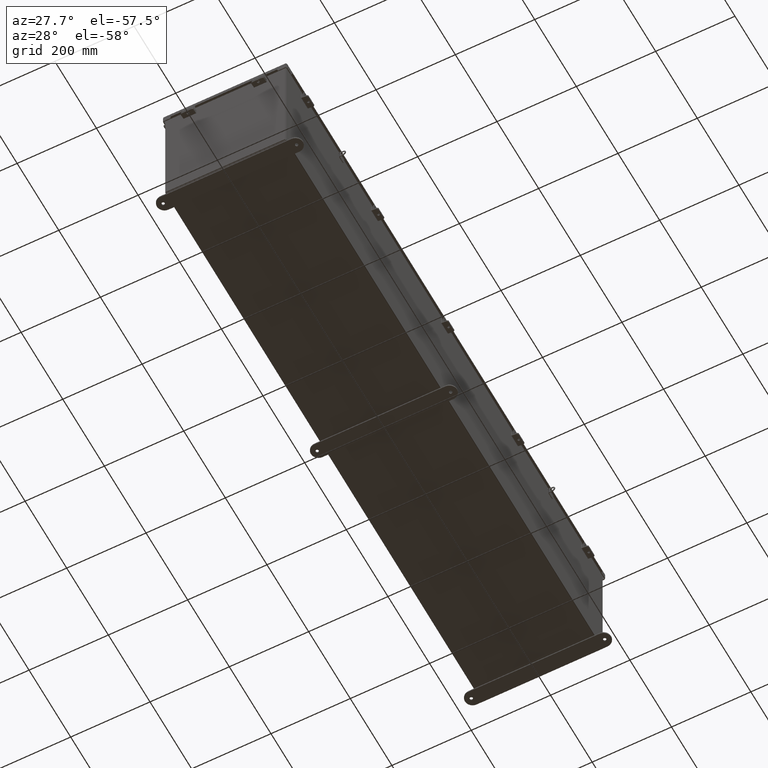
[diagram: clean part render]
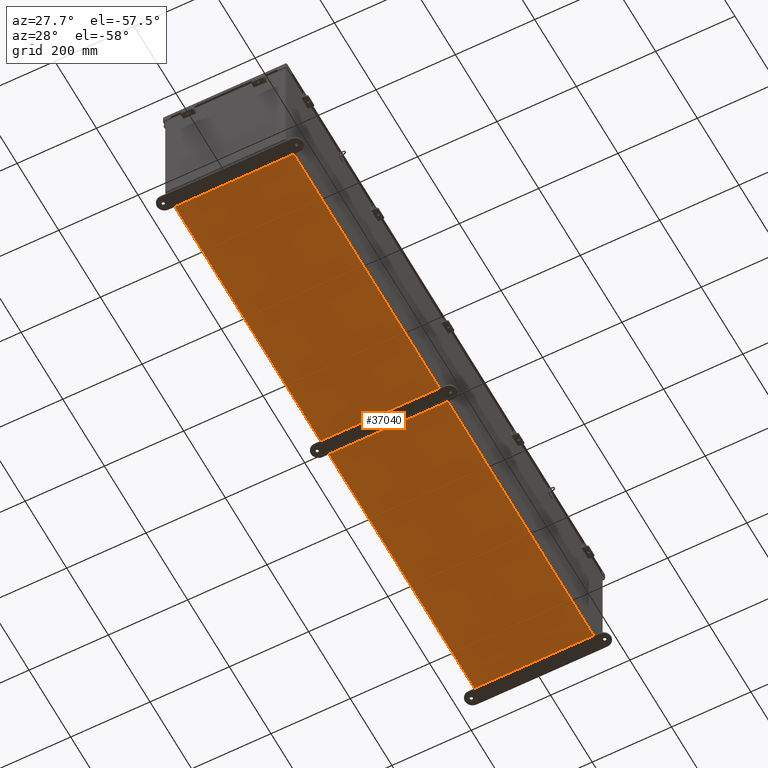
[diagram: same view with one face highlighted and labeled with its STEP entity id]
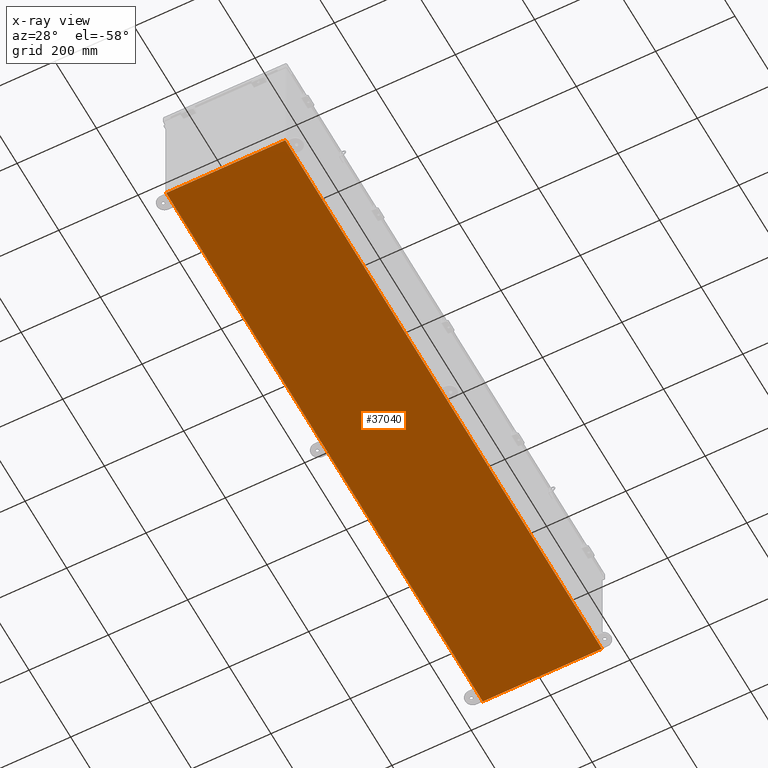
[diagram: x-ray of the same camera — body ghosted, the highlighted face saturated]
A machine part, auxiliary view. The second image highlights one B-rep face of the part: STEP entity #37040.
The next image is the same camera in x-ray: the body ghosted, the highlighted face saturated — about 0% of this face is hidden behind the body in this view.
In plain terms, the highlighted planar face has unit normal (0, 0, -1).
Its self-contained STEP definition (entity closure, byte-faithful):
#579 = CARTESIAN_POINT ( 'NONE',  ( 5.912299999999999200, -29.92529999999998600, -0.07470000000000000300 ) ) ;
#1866 = LINE ( 'NONE', #14278, #37766 ) ;
#2104 = CARTESIAN_POINT ( 'NONE',  ( -5.912300000000001000, 29.92530000000001800, -0.07470000000000000300 ) ) ;
#3585 = CARTESIAN_POINT ( 'NONE',  ( -6.000000000000001800, 29.92530000000001800, -0.07470000000000000300 ) ) ;
#4388 = CARTESIAN_POINT ( 'NONE',  ( 0.0000000000000000000, 0.0000000000000000000, -0.07470000000000000300 ) ) ;
#5069 = EDGE_LOOP ( 'NONE', ( #22308, #30444, #9667, #18981 ) ) ;
#5172 = EDGE_CURVE ( 'NONE', #8235, #15026, #34430, .T. ) ;
#5700 = DIRECTION ( 'NONE',  ( 1.000000000000000000, -7.284927983104702900E-016, 0.0000000000000000000 ) ) ;
#6953 = EDGE_CURVE ( 'NONE', #36063, #14785, #21622, .T. ) ;
#8235 = VERTEX_POINT ( 'NONE', #39437 ) ;
#8572 = VECTOR ( 'NONE', #5700, 39.37007874015748100 ) ;
#9667 = ORIENTED_EDGE ( 'NONE', *, *, #5172, .F. ) ;
#10186 = CARTESIAN_POINT ( 'NONE',  ( 5.912299999999999200, 29.92530000000001800, -0.07469999999999994700 ) ) ;
#14278 = CARTESIAN_POINT ( 'NONE',  ( -5.912300000000001000, -29.92529999999996800, -0.07469999999999885100 ) ) ;
#14555 = PLANE ( 'NONE',  #32424 ) ;
#14785 = VERTEX_POINT ( 'NONE', #2104 ) ;
#15026 = VERTEX_POINT ( 'NONE', #579 ) ;
#15204 = LINE ( 'NONE', #33583, #41102 ) ;
#16727 = DIRECTION ( 'NONE',  ( -0.0000000000000000000, -1.000000000000000000, -0.0000000000000000000 ) ) ;
#17952 = EDGE_CURVE ( 'NONE', #8235, #14785, #1866, .T. ) ;
#17971 = DIRECTION ( 'NONE',  ( -1.000000000000000000, 0.0000000000000000000, -0.0000000000000000000 ) ) ;
#18981 = ORIENTED_EDGE ( 'NONE', *, *, #17952, .T. ) ;
#21622 = LINE ( 'NONE', #3585, #29552 ) ;
#22308 = ORIENTED_EDGE ( 'NONE', *, *, #6953, .F. ) ;
#25911 = CARTESIAN_POINT ( 'NONE',  ( -6.000000000000001800, -29.92529999999998200, -0.07470000000000000300 ) ) ;
#27190 = DIRECTION ( 'NONE',  ( -1.000000000000000000, -0.0000000000000000000, -0.0000000000000000000 ) ) ;
#28803 = EDGE_CURVE ( 'NONE', #36063, #15026, #15204, .T. ) ;
#29552 = VECTOR ( 'NONE', #27190, 39.37007874015748100 ) ;
#30444 = ORIENTED_EDGE ( 'NONE', *, *, #28803, .T. ) ;
#32424 = AXIS2_PLACEMENT_3D ( 'NONE', #4388, #38172, #17971 ) ;
#33583 = CARTESIAN_POINT ( 'NONE',  ( 5.912299999999999200, 29.92530000000002100, -0.07469999999999994700 ) ) ;
#34430 = LINE ( 'NONE', #25911, #8572 ) ;
#36063 = VERTEX_POINT ( 'NONE', #10186 ) ;
#37040 = ADVANCED_FACE ( 'NONE', ( #38743 ), #14555, .T. ) ;
#37766 = VECTOR ( 'NONE', #37891, 39.37007874015748100 ) ;
#37891 = DIRECTION ( 'NONE',  ( -0.0000000000000000000, 1.000000000000000000, -0.0000000000000000000 ) ) ;
#38172 = DIRECTION ( 'NONE',  ( 0.0000000000000000000, 0.0000000000000000000, -1.000000000000000000 ) ) ;
#38743 = FACE_OUTER_BOUND ( 'NONE', #5069, .T. ) ;
#39437 = CARTESIAN_POINT ( 'NONE',  ( -5.912300000000001000, -29.92529999999997200, -0.07469999999999885100 ) ) ;
#41102 = VECTOR ( 'NONE', #16727, 39.37007874015748100 ) ;